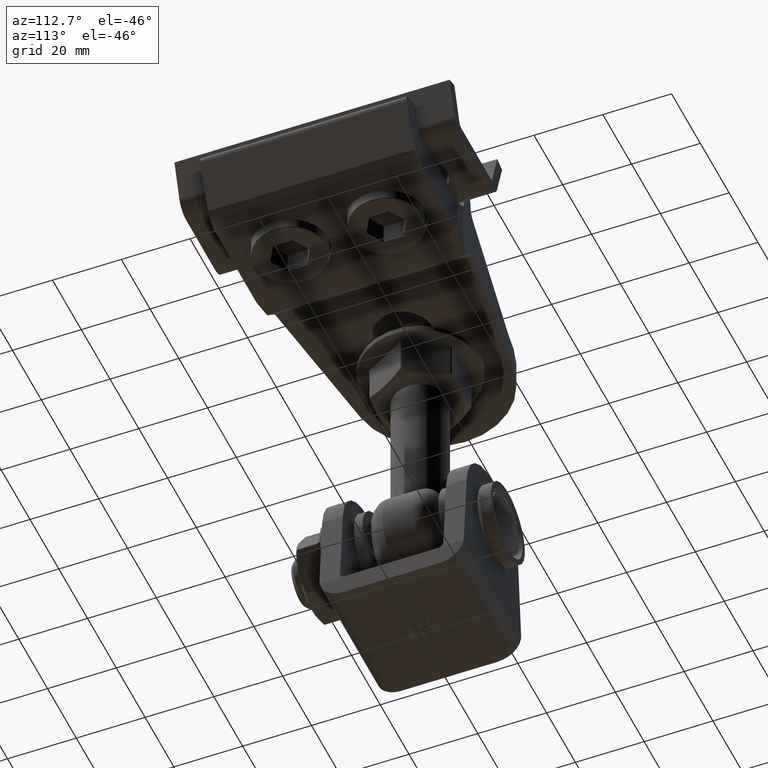
[diagram: clean part render]
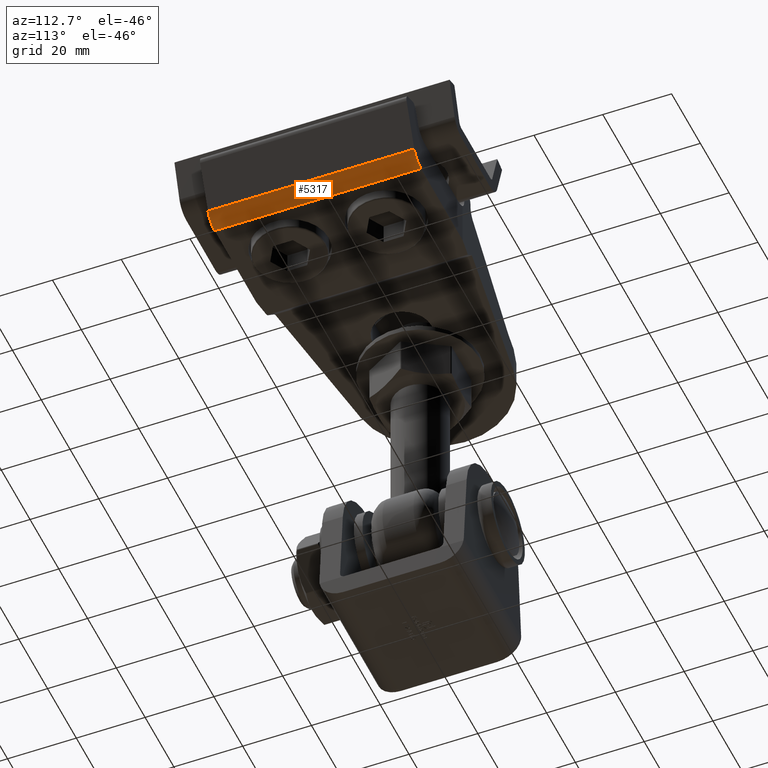
[diagram: same view with one face highlighted and labeled with its STEP entity id]
A machine part, auxiliary view. The second image highlights one B-rep face of the part: STEP entity #5317.
In plain terms, the highlighted cylindrical surface (edge-blend (fillet) strip) has radius 5 mm, axis along (0, -1, 0).
Its self-contained STEP definition (entity closure, byte-faithful):
#609 = ORIENTED_EDGE ( 'NONE', *, *, #7458, .T. ) ;
#835 = VERTEX_POINT ( 'NONE', #1463 ) ;
#1463 = CARTESIAN_POINT ( 'NONE',  ( -45.69900731141533612, -30.00000000000000000, 10.50000000000000178 ) ) ;
#1566 = DIRECTION ( 'NONE',  ( 0.000000000000000000, 1.000000000000000000, -0.000000000000000000 ) ) ;
#1567 = DIRECTION ( 'NONE',  ( 0.000000000000000000, 1.000000000000000000, -0.000000000000000000 ) ) ;
#2574 = VERTEX_POINT ( 'NONE', #13219 ) ;
#3084 = ORIENTED_EDGE ( 'NONE', *, *, #15875, .T. ) ;
#3158 = CARTESIAN_POINT ( 'NONE',  ( -45.69900731141532901, 30.00000000000000000, 5.500000000000000888 ) ) ;
#3510 = CARTESIAN_POINT ( 'NONE',  ( -50.33451075160463972, -30.00000000000000000, 7.374061860236509780 ) ) ;
#3600 = AXIS2_PLACEMENT_3D ( 'NONE', #3158, #1566, #12738 ) ;
#4496 = CARTESIAN_POINT ( 'NONE',  ( -45.69900731141533612, 30.00000000000000000, 10.50000000000000178 ) ) ;
#5243 = DIRECTION ( 'NONE',  ( -0.000000000000000000, -1.000000000000000000, -0.000000000000000000 ) ) ;
#5317 = ADVANCED_FACE ( 'NONE', ( #5688 ), #20023, .T. ) ;
#5673 = EDGE_CURVE ( 'NONE', #14920, #2574, #16730, .T. ) ;
#5688 = FACE_OUTER_BOUND ( 'NONE', #18950, .T. ) ;
#5900 = AXIS2_PLACEMENT_3D ( 'NONE', #13085, #1567, #6907 ) ;
#6907 = DIRECTION ( 'NONE',  ( 0.000000000000000000, 0.000000000000000000, -1.000000000000000000 ) ) ;
#6944 = CIRCLE ( 'NONE', #5900, 5.000000000000002665 ) ;
#7458 = EDGE_CURVE ( 'NONE', #14920, #13512, #13186, .T. ) ;
#7625 = ORIENTED_EDGE ( 'NONE', *, *, #5673, .F. ) ;
#9552 = CARTESIAN_POINT ( 'NONE',  ( -50.33451075160463972, 30.00000000000000000, 7.374061860236509780 ) ) ;
#9577 = EDGE_CURVE ( 'NONE', #2574, #835, #12141, .T. ) ;
#11569 = DIRECTION ( 'NONE',  ( 0.000000000000000000, 0.000000000000000000, -1.000000000000000000 ) ) ;
#12141 = LINE ( 'NONE', #4496, #15893 ) ;
#12408 = CARTESIAN_POINT ( 'NONE',  ( -50.33451075160463972, 30.00000000000000000, 7.374061860236509780 ) ) ;
#12738 = DIRECTION ( 'NONE',  ( 0.000000000000000000, 0.000000000000000000, -1.000000000000000000 ) ) ;
#13033 = AXIS2_PLACEMENT_3D ( 'NONE', #13252, #5243, #11569 ) ;
#13085 = CARTESIAN_POINT ( 'NONE',  ( -45.69900731141532901, -30.00000000000000000, 5.500000000000000888 ) ) ;
#13186 = LINE ( 'NONE', #9552, #18947 ) ;
#13219 = CARTESIAN_POINT ( 'NONE',  ( -45.69900731141533612, 30.00000000000000000, 10.50000000000000178 ) ) ;
#13252 = CARTESIAN_POINT ( 'NONE',  ( -45.69900731141532901, 30.00000000000000000, 5.500000000000000888 ) ) ;
#13512 = VERTEX_POINT ( 'NONE', #3510 ) ;
#14920 = VERTEX_POINT ( 'NONE', #12408 ) ;
#15875 = EDGE_CURVE ( 'NONE', #13512, #835, #6944, .T. ) ;
#15893 = VECTOR ( 'NONE', #15945, 1000.000000000000000 ) ;
#15945 = DIRECTION ( 'NONE',  ( -0.000000000000000000, -1.000000000000000000, -0.000000000000000000 ) ) ;
#16730 = CIRCLE ( 'NONE', #3600, 5.000000000000002665 ) ;
#18947 = VECTOR ( 'NONE', #20805, 1000.000000000000000 ) ;
#18950 = EDGE_LOOP ( 'NONE', ( #3084, #20851, #7625, #609 ) ) ;
#20023 = CYLINDRICAL_SURFACE ( 'NONE', #13033, 5.000000000000002665 ) ;
#20805 = DIRECTION ( 'NONE',  ( -0.000000000000000000, -1.000000000000000000, -0.000000000000000000 ) ) ;
#20851 = ORIENTED_EDGE ( 'NONE', *, *, #9577, .F. ) ;